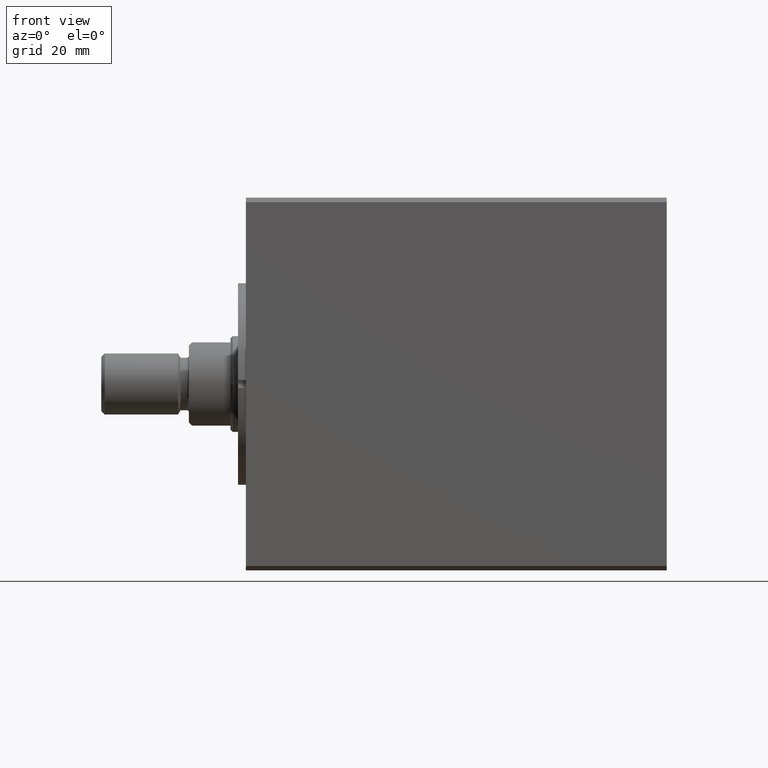
[diagram: clean part render]
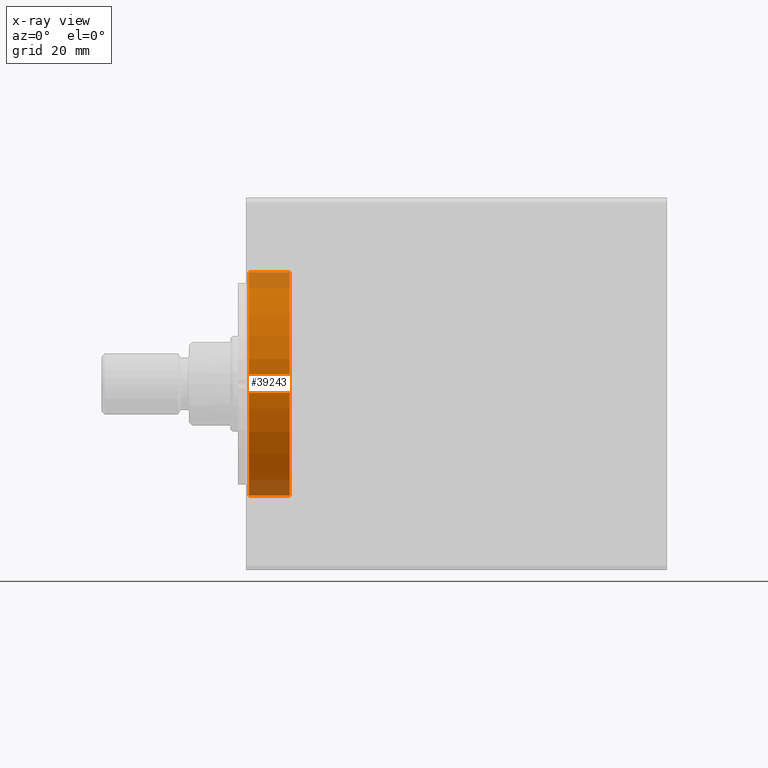
[diagram: x-ray — body ghosted, one internal face saturated and labeled with its STEP entity id]
A machine part, front view, then the same camera in x-ray: the body is ghosted and one INTERNAL B-rep face — a face not visible from any outside direction — is saturated and labeled: STEP entity #39243.
In plain terms, the highlighted cylindrical surface (partial cylindrical patch) has radius 25.5 mm, axis along (-1, -0, -0).
Its self-contained STEP definition (entity closure, byte-faithful):
#1968 = CARTESIAN_POINT ( 'NONE',  ( 10.00000000000000000, 0.000000000000000000, 0.000000000000000000 ) ) ;
#2462 = EDGE_CURVE ( 'NONE', #3241, #38083, #28860, .T. ) ;
#3241 = VERTEX_POINT ( 'NONE', #37268 ) ;
#4574 = DIRECTION ( 'NONE',  ( -1.000000000000000000, 0.000000000000000000, 0.000000000000000000 ) ) ;
#4758 = CARTESIAN_POINT ( 'NONE',  ( 10.00000000000000000, 0.000000000000000000, 0.000000000000000000 ) ) ;
#7668 = VERTEX_POINT ( 'NONE', #28369 ) ;
#8827 = EDGE_CURVE ( 'NONE', #14817, #38083, #18846, .T. ) ;
#9226 = CARTESIAN_POINT ( 'NONE',  ( 10.00000000000000000, 0.000000000000000000, 25.50000000000000000 ) ) ;
#9533 = EDGE_CURVE ( 'NONE', #7668, #3241, #14409, .T. ) ;
#10883 = AXIS2_PLACEMENT_3D ( 'NONE', #31844, #4574, #42389 ) ;
#12301 = CARTESIAN_POINT ( 'NONE',  ( 10.00000000000000000, 0.000000000000000000, 25.50000000000000000 ) ) ;
#14342 = VECTOR ( 'NONE', #33040, 1000.000000000000000 ) ;
#14409 = LINE ( 'NONE', #34690, #17247 ) ;
#14445 = DIRECTION ( 'NONE',  ( 0.000000000000000000, 0.000000000000000000, 1.000000000000000000 ) ) ;
#14817 = VERTEX_POINT ( 'NONE', #9226 ) ;
#15045 = DIRECTION ( 'NONE',  ( 0.000000000000000000, 0.000000000000000000, 1.000000000000000000 ) ) ;
#15532 = ORIENTED_EDGE ( 'NONE', *, *, #27293, .F. ) ;
#15702 = DIRECTION ( 'NONE',  ( -1.000000000000000000, -0.000000000000000000, -0.000000000000000000 ) ) ;
#16365 = ORIENTED_EDGE ( 'NONE', *, *, #8827, .F. ) ;
#17247 = VECTOR ( 'NONE', #34474, 1000.000000000000000 ) ;
#18052 = DIRECTION ( 'NONE',  ( -1.000000000000000000, 0.000000000000000000, 0.000000000000000000 ) ) ;
#18818 = ORIENTED_EDGE ( 'NONE', *, *, #2462, .T. ) ;
#18846 = LINE ( 'NONE', #12301, #14342 ) ;
#19584 = ORIENTED_EDGE ( 'NONE', *, *, #9533, .T. ) ;
#21005 = AXIS2_PLACEMENT_3D ( 'NONE', #4758, #18052, #14445 ) ;
#24137 = CARTESIAN_POINT ( 'NONE',  ( 0.6999999999999784173, 0.000000000000000000, 25.50000000000000000 ) ) ;
#26093 = FACE_OUTER_BOUND ( 'NONE', #26468, .T. ) ;
#26468 = EDGE_LOOP ( 'NONE', ( #15532, #19584, #18818, #16365 ) ) ;
#27293 = EDGE_CURVE ( 'NONE', #7668, #14817, #40447, .T. ) ;
#28369 = CARTESIAN_POINT ( 'NONE',  ( 10.00000000000000000, 3.122849337825750222E-15, -25.50000000000000000 ) ) ;
#28860 = CIRCLE ( 'NONE', #10883, 25.50000000000000000 ) ;
#29240 = CYLINDRICAL_SURFACE ( 'NONE', #32863, 25.50000000000000000 ) ;
#31844 = CARTESIAN_POINT ( 'NONE',  ( 0.6999999999999784173, 0.000000000000000000, 0.000000000000000000 ) ) ;
#32863 = AXIS2_PLACEMENT_3D ( 'NONE', #1968, #15702, #15045 ) ;
#33040 = DIRECTION ( 'NONE',  ( -1.000000000000000000, -0.000000000000000000, -0.000000000000000000 ) ) ;
#34474 = DIRECTION ( 'NONE',  ( -1.000000000000000000, -0.000000000000000000, -0.000000000000000000 ) ) ;
#34690 = CARTESIAN_POINT ( 'NONE',  ( 10.00000000000000000, 3.122849337825750222E-15, -25.50000000000000000 ) ) ;
#37268 = CARTESIAN_POINT ( 'NONE',  ( 0.6999999999999784173, 3.122849337825750222E-15, -25.50000000000000000 ) ) ;
#38083 = VERTEX_POINT ( 'NONE', #24137 ) ;
#39243 = ADVANCED_FACE ( 'NONE', ( #26093 ), #29240, .F. ) ;
#40447 = CIRCLE ( 'NONE', #21005, 25.50000000000000000 ) ;
#42389 = DIRECTION ( 'NONE',  ( 0.000000000000000000, 0.000000000000000000, -1.000000000000000000 ) ) ;